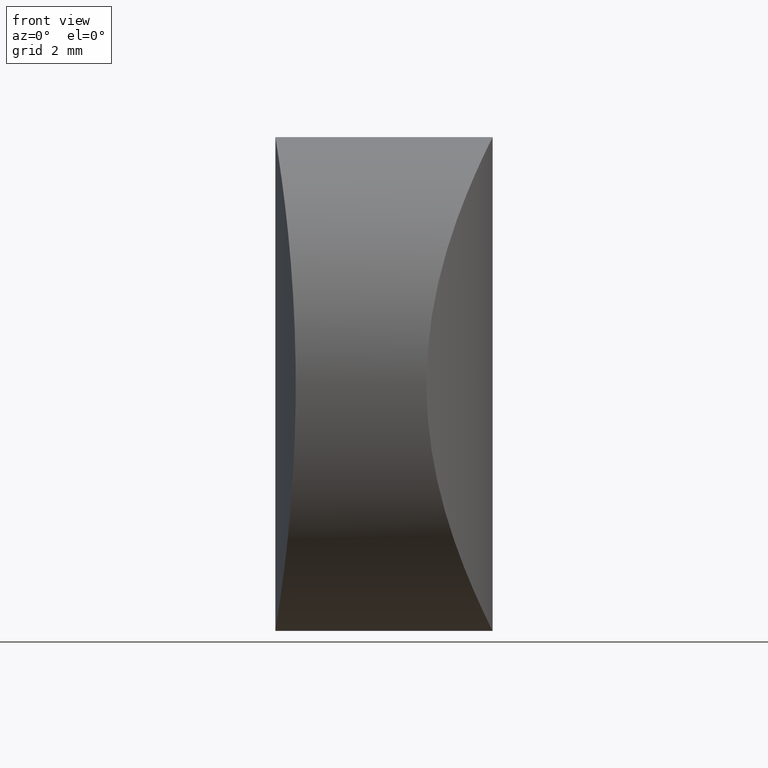
[diagram: clean part render]
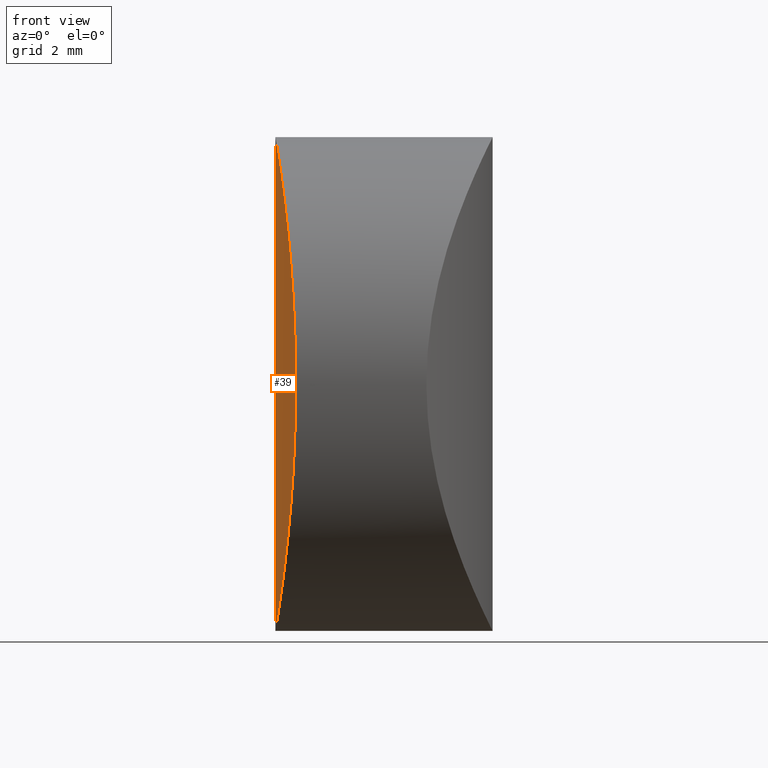
[diagram: same view with one face highlighted and labeled with its STEP entity id]
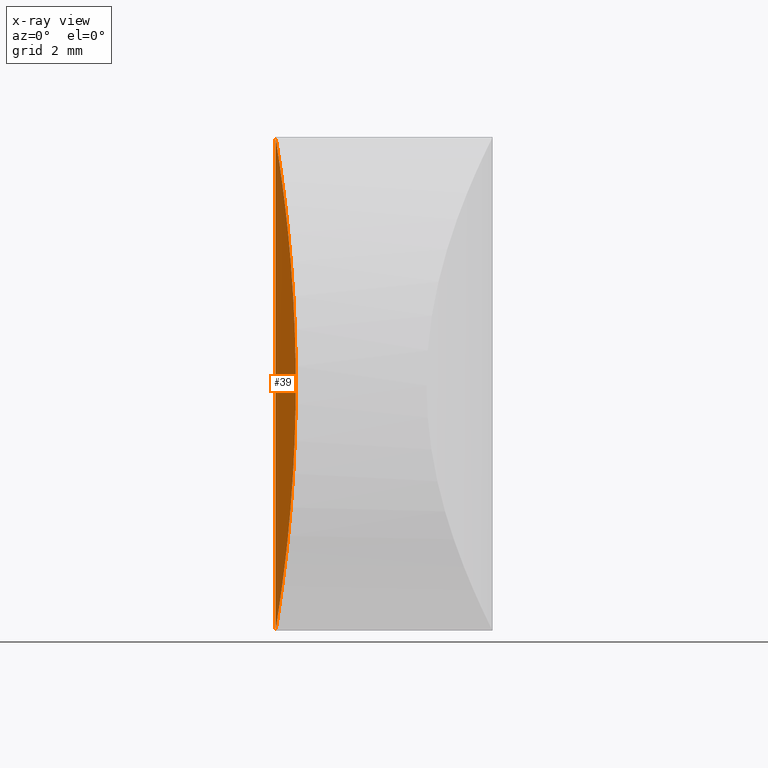
[diagram: x-ray of the same camera — body ghosted, the highlighted face saturated]
A machine part, front view. The second image highlights one B-rep face of the part: STEP entity #39.
The next image is the same camera in x-ray: the body ghosted, the highlighted face saturated — about 0% of this face is hidden behind the body in this view.
In plain terms, the highlighted cylindrical surface (partial cylindrical patch) has radius 38.1 mm, axis along (-0, -0, -1).
Its self-contained STEP definition (entity closure, byte-faithful):
#2 = CARTESIAN_POINT ( 'NONE',  ( -1.621565708852395371, -3.130939934637392508, 0.8369232792497582896 ) ) ;
#3 = CARTESIAN_POINT ( 'NONE',  ( -1.286459522562452218, -5.927213797019759589, 8.273865896920996832 ) ) ;
#24 = CARTESIAN_POINT ( 'NONE',  ( -1.459402016810353864, -4.705635259058762898, 10.38338845988655912 ) ) ;
#25 = CARTESIAN_POINT ( 'NONE',  ( -1.260122480537348544, -6.090181329704440039, 4.830950455695248280 ) ) ;
#29 = CARTESIAN_POINT ( 'NONE',  ( -1.526570675347540762, -4.130287875618672722, 10.95835697628565519 ) ) ;
#31 = CARTESIAN_POINT ( 'NONE',  ( -1.749999999999991340, 2.323866311876246401E-32, -1.167039368473968539E-15 ) ) ;
#39 = ADVANCED_FACE ( 'NONE', ( #152 ), #346, .T. ) ;
#44 = CARTESIAN_POINT ( 'NONE',  ( -1.268137729938411784, -6.040641502459361156, 4.632820593986693325 ) ) ;
#45 = CARTESIAN_POINT ( 'NONE',  ( -1.686600990894568275, -2.205190765562237143, 12.10162541744946196 ) ) ;
#47 = VERTEX_POINT ( 'NONE', #79 ) ;
#48 = EDGE_CURVE ( 'NONE', #47, #104, #315, .T. ) ;
#50 = CARTESIAN_POINT ( 'NONE',  ( 36.35000000000000142, 0.000000000000000000, 12.50000000000000000 ) ) ;
#72 = CARTESIAN_POINT ( 'NONE',  ( -1.749999999999991340, 2.323866311876246401E-32, -1.167039368473968539E-15 ) ) ;
#73 = CARTESIAN_POINT ( 'NONE',  ( -1.749999999999997780, 0.000000000000000000, 12.50000000000000000 ) ) ;
#75 = CARTESIAN_POINT ( 'NONE',  ( -1.698075541327791260, -2.023747739799695466, 0.3227435011837379575 ) ) ;
#79 = CARTESIAN_POINT ( 'NONE',  ( -1.749999999999997780, 0.000000000000000000, 12.50000000000000000 ) ) ;
#81 = CARTESIAN_POINT ( 'NONE',  ( -1.233870054082204515, -6.250016940629664397, 5.836852875865175427 ) ) ;
#101 = CARTESIAN_POINT ( 'NONE',  ( -1.724082338061241559, -1.419232947397064848, 12.34013833801059157 ) ) ;
#103 = CARTESIAN_POINT ( 'NONE',  ( -1.298028973939799213, -5.851683952539731060, 4.044964187310434944 ) ) ;
#104 = VERTEX_POINT ( 'NONE', #31 ) ;
#106 = CARTESIAN_POINT ( 'NONE',  ( -1.749999999999997780, -0.4134111996259762223, 12.50000000000000533 ) ) ;
#108 = CARTESIAN_POINT ( 'NONE',  ( -1.267045465641554181, -6.047693536380916335, 7.880219443698434745 ) ) ;
#127 = CARTESIAN_POINT ( 'NONE',  ( -1.378779537468205030, -5.306834674025096454, 9.557891344505101472 ) ) ;
#133 = CARTESIAN_POINT ( 'NONE',  ( -1.363634406776115027, -5.413064718625538951, 9.380959584004830987 ) ) ;
#152 = FACE_OUTER_BOUND ( 'NONE', #178, .T. ) ;
#154 = CARTESIAN_POINT ( 'NONE',  ( -1.716163719354671935, -1.617354943771918130, 12.29059430706059786 ) ) ;
#156 = DIRECTION ( 'NONE',  ( -0.000000000000000000, -0.000000000000000000, -1.000000000000000000 ) ) ;
#158 = VECTOR ( 'NONE', #248, 1000.000000000000000 ) ;
#177 = CARTESIAN_POINT ( 'NONE',  ( -1.649529281238026446, -2.770985683892318363, 0.6441260450578081276 ) ) ;
#178 = EDGE_LOOP ( 'NONE', ( #186, #235 ) ) ;
#180 = CARTESIAN_POINT ( 'NONE',  ( -1.743273950505977998, -0.8221003098062016345, 0.04062136647609398271 ) ) ;
#185 = CARTESIAN_POINT ( 'NONE',  ( -1.459052608794357386, -4.708430838582900790, 2.119794543840803236 ) ) ;
#186 = ORIENTED_EDGE ( 'NONE', *, *, #48, .F. ) ;
#192 = CARTESIAN_POINT ( 'NONE',  ( -1.749999999999994671, 0.000000000000000000, 12.50000000000000000 ) ) ;
#208 = CARTESIAN_POINT ( 'NONE',  ( -1.650890342508009034, -2.772338036541217576, 11.86642120623027097 ) ) ;
#211 = DIRECTION ( 'NONE',  ( -1.000000000000000000, 0.000000000000000000, 0.000000000000000000 ) ) ;
#213 = CARTESIAN_POINT ( 'NONE',  ( -1.606517573012688160, -3.307886042671826843, 0.9431613263702570693 ) ) ;
#214 = CARTESIAN_POINT ( 'NONE',  ( -1.322347455880843015, -5.693019792750916963, 8.837155731768309153 ) ) ;
#217 = CARTESIAN_POINT ( 'NONE',  ( -1.240699487290325642, -6.209349300076309142, 7.072310047511150444 ) ) ;
#233 = CARTESIAN_POINT ( 'NONE',  ( -1.662529177513216494, -2.587088586990915928, 0.5569490804721093369 ) ) ;
#234 = CARTESIAN_POINT ( 'NONE',  ( -1.526224871796820981, -4.133445245479577146, 1.544413057393588806 ) ) ;
#235 = ORIENTED_EDGE ( 'NONE', *, *, #285, .T. ) ;
#237 = CARTESIAN_POINT ( 'NONE',  ( -1.425931529498716710, -4.964090617211167178, 10.06953687795566132 ) ) ;
#239 = CARTESIAN_POINT ( 'NONE',  ( -1.424923094559794379, -4.971666286081011243, 2.440606964671157009 ) ) ;
#248 = DIRECTION ( 'NONE',  ( -0.000000000000000000, -0.000000000000000000, -1.000000000000000000 ) ) ;
#258 = CARTESIAN_POINT ( 'NONE',  ( -1.334084258924177480, -5.616489684704366603, 3.477799487009014534 ) ) ;
#260 = CARTESIAN_POINT ( 'NONE',  ( -1.622669147084165875, -3.130891926397181724, 11.67461487677046250 ) ) ;
#264 = CARTESIAN_POINT ( 'NONE',  ( -1.697444077339251178, -2.010138429213203182, 12.17148293014821547 ) ) ;
#266 = CARTESIAN_POINT ( 'NONE',  ( -1.362531538549025090, -5.424688508477381710, 3.119234032419559988 ) ) ;
#267 = CARTESIAN_POINT ( 'NONE',  ( -1.560603827104097840, -3.809488662938488979, 11.22159199281292352 ) ) ;
#283 = CARTESIAN_POINT ( 'NONE',  ( -1.717259833785022449, -1.630060715058897935, 0.2022620758610631231 ) ) ;
#285 = EDGE_CURVE ( 'NONE', #47, #104, #329, .T. ) ;
#311 = AXIS2_PLACEMENT_3D ( 'NONE', #50, #156, #211 ) ;
#313 = CARTESIAN_POINT ( 'NONE',  ( -1.287069841359362199, -5.921537788994331919, 4.240022585703973945 ) ) ;
#315 = B_SPLINE_CURVE_WITH_KNOTS ( 'NONE', 3,
 ( #73, #106, #342, #101, #154, #264, #45, #208, #260, #267, #29, #24, #237, #127, #133, #344, #214, #3, #108, #217, #324, #81, #321, #25, #44, #313, #103, #258, #266, #239, #185, #234, #341, #213, #2, #177, #233, #75, #283, #180, #345, #72 ),
 .UNSPECIFIED., .F., .F.,
 ( 4, 2, 2, 2, 2, 2, 2, 2, 2, 2, 2, 2, 2, 2, 2, 2, 2, 2, 2, 2, 4 ),
 ( 0.02934055191746779562, 0.03056308543687800972, 0.03117435219658311329, 0.03178561895628822381, 0.03300815247569843791, 0.03423068599510865201, 0.03545321951451886611, 0.03606448627422397663, 0.03667575303392908020, 0.03789828655333929430, 0.03912082007274951534, 0.04034335359215972250, 0.04095462035186483302, 0.04156588711156993660, 0.04278842063098015069, 0.04401095415039037173, 0.04523348766980058583, 0.04584475442950569635, 0.04645602118921079993, 0.04767855470862101402, 0.04890108822803122812 ),
 .UNSPECIFIED. ) ;
#321 = CARTESIAN_POINT ( 'NONE',  ( -1.240685564068988889, -6.209415861584851370, 5.430429619015798792 ) ) ;
#324 = CARTESIAN_POINT ( 'NONE',  ( -1.233875690103459100, -6.249983048868619662, 6.663659513602136819 ) ) ;
#329 = LINE ( 'NONE', #192, #158 ) ;
#341 = CARTESIAN_POINT ( 'NONE',  ( -1.559605466909316007, -3.819575723843635640, 1.285936301097123868 ) ) ;
#342 = CARTESIAN_POINT ( 'NONE',  ( -1.743278055978541241, -0.8197799263718845708, 12.45938720105719177 ) ) ;
#344 = CARTESIAN_POINT ( 'NONE',  ( -1.335460785311727072, -5.605848304648263003, 9.021036331406081743 ) ) ;
#345 = CARTESIAN_POINT ( 'NONE',  ( -1.749999999999991118, -0.4134255790408558617, -1.178128714858814518E-15 ) ) ;
#346 = CYLINDRICAL_SURFACE ( 'NONE', #311, 38.09999999999999432 ) ;